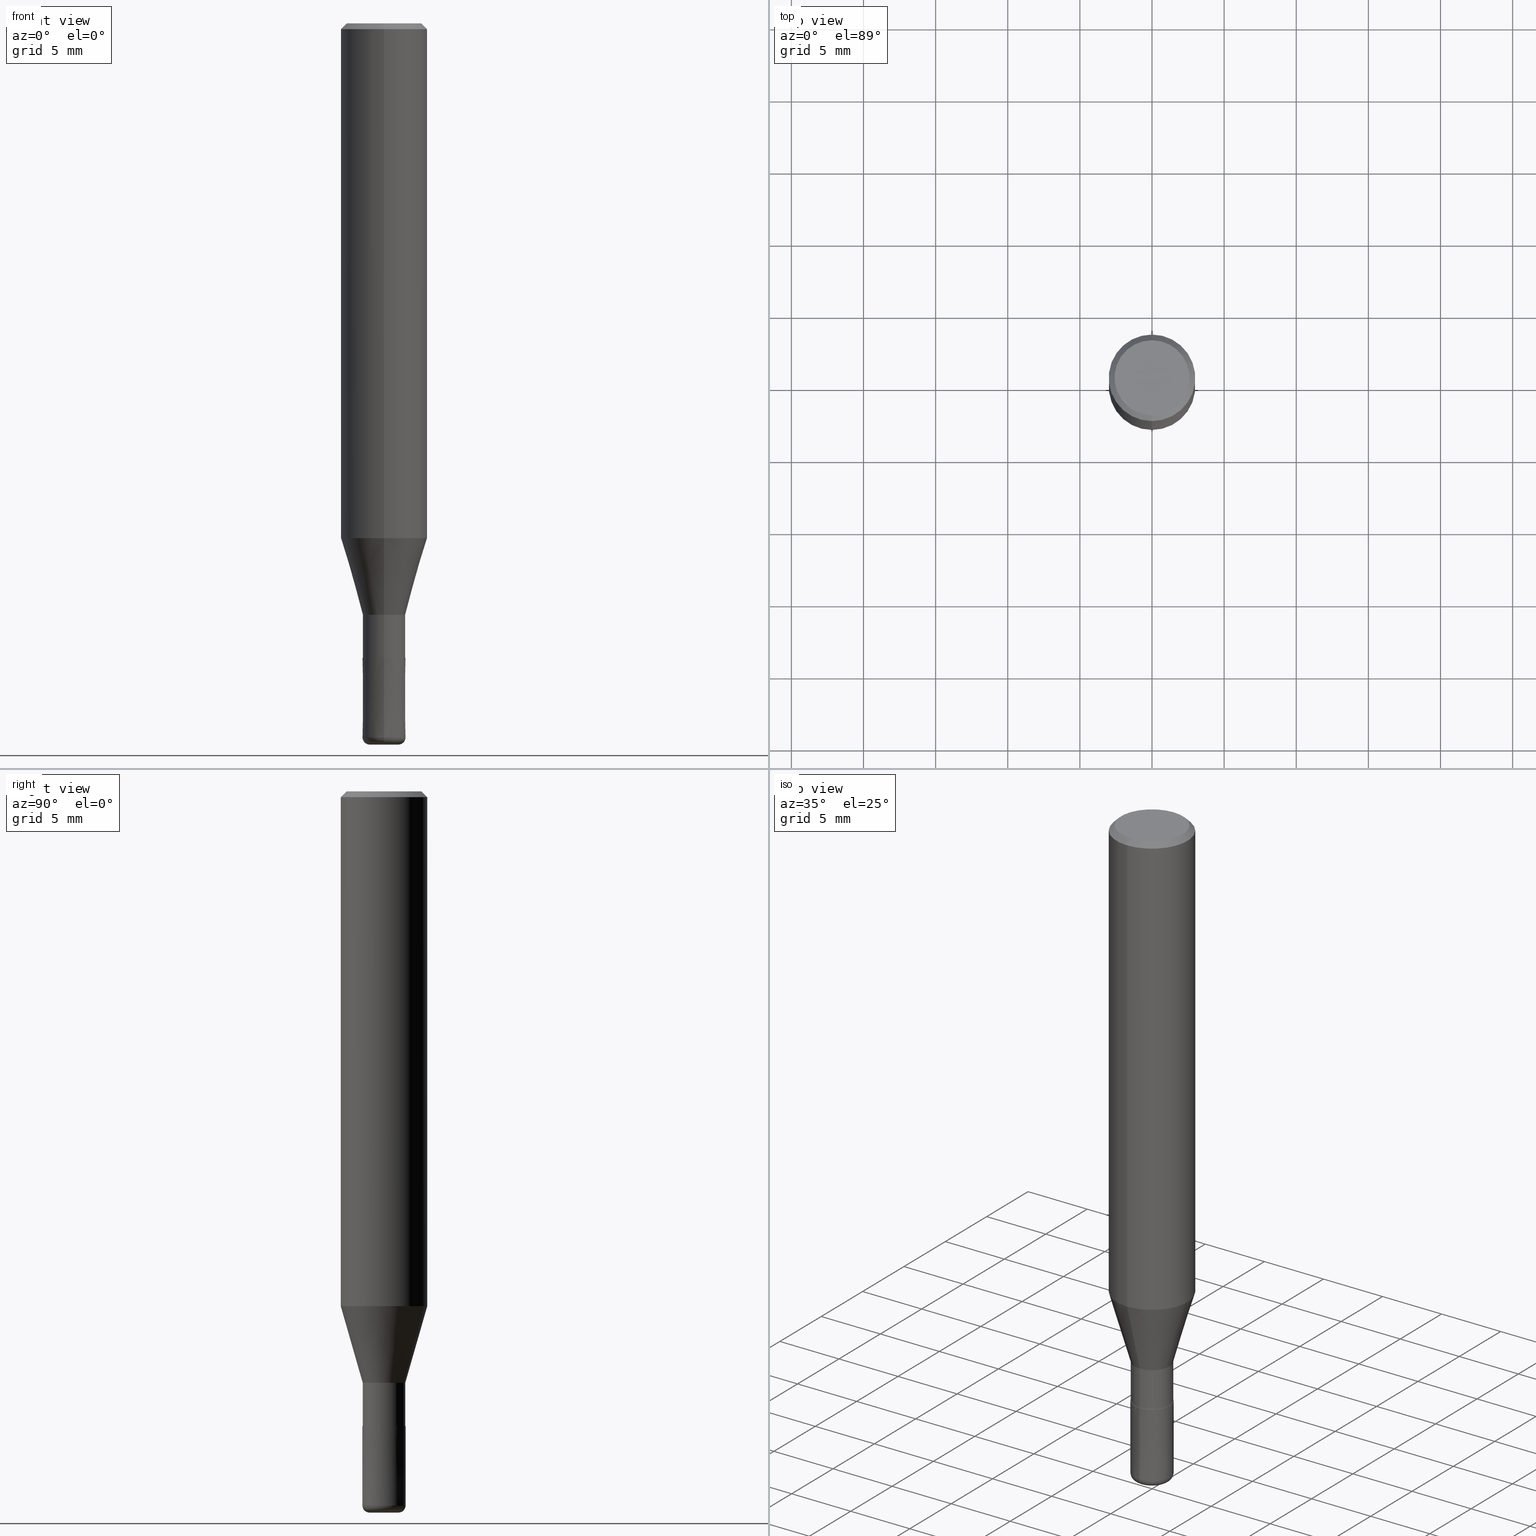
[diagram: canonical four-view strip — front | top / right | iso, engineering-drawing reading convention]
A machine part, canonical four-view strip (front | top / right | iso — engineering-drawing reading convention). The complete STEP part file that produces these views, byte-faithful:
ISO-10303-21;
HEADER;
FILE_DESCRIPTION(('no description'),'unknown implementation level');
FILE_NAME('CXLRS5030-05-09-Huellk.stp','  ',('CIMSOURCE GmbH'),('CADClick - KiM GmbH - www.kimweb.de'),'unknown preprocess','ACIS','unknown authorization');
FILE_SCHEMA(('automotive_design'));
ENDSEC;
DATA;
#1=MECHANICAL_DESIGN_GEOMETRIC_PRESENTATION_REPRESENTATION(' ',(#14,#15,#16,#17,#18,#19,#20,#21,#22,#23,#24,#25,#26,#27,#28,#29,#30,#31,#32,#33,#34,#35,#36,#37,#38,#39,#40,#41,#42,#43,#44,#45,#46,#47,#48,#49,#50,#51,#52,#53,#54,#55,#56,#57,#58,#59,#60,#61,#62,#63,#64,#65,#66,#67,#68,#69,#70,#71,#72,#73,#74,#75,#76,#77,#78,#79,#80,#81,#82,#83,#84,#85,#86,#87,#88,#89,#90,#91,#92,#93,#94,#95,#96,#97,#98,#99,#100,#101,#102,#103,#104,#105),#10);
#2=PRODUCT_DEFINITION_CONTEXT('',#106,'design');
#3=APPLICATION_PROTOCOL_DEFINITION('INTERNATIONAL STANDARD','automotive_design',1994,#106);
#4=PRODUCT_CATEGORY_RELATIONSHIP('NONE','NONE',#107,#108);
#5=SHAPE_DEFINITION_REPRESENTATION(#109,#110);
#6=PRODUCT_DEFINITION_CONTEXT('',#111,'design');
#7=APPLICATION_PROTOCOL_DEFINITION('INTERNATIONAL STANDARD','automotive_design',1994,#111);
#8=PRODUCT_CATEGORY_RELATIONSHIP('NONE','NONE',#112,#113);
#9=SHAPE_DEFINITION_REPRESENTATION(#114,#115);
#10= (GEOMETRIC_REPRESENTATION_CONTEXT(3)GLOBAL_UNCERTAINTY_ASSIGNED_CONTEXT((#118))GLOBAL_UNIT_ASSIGNED_CONTEXT((#120,#121,#122))REPRESENTATION_CONTEXT('NONE','WORKSPACE'));
#14=STYLED_ITEM('',(#124),#125);
#15=STYLED_ITEM('',(#126),#127);
#16=STYLED_ITEM('',(#128),#129);
#17=STYLED_ITEM('',(#130),#131);
#18=STYLED_ITEM('',(#132),#133);
#19=STYLED_ITEM('',(#134),#135);
#20=STYLED_ITEM('',(#136),#137);
#21=STYLED_ITEM('',(#138),#139);
#22=STYLED_ITEM('',(#140),#141);
#23=STYLED_ITEM('',(#142),#143);
#24=STYLED_ITEM('',(#144),#145);
#25=STYLED_ITEM('',(#146),#147);
#26=STYLED_ITEM('',(#148),#149);
#27=STYLED_ITEM('',(#150),#151);
#28=STYLED_ITEM('',(#152),#153);
#29=STYLED_ITEM('',(#154),#155);
#30=STYLED_ITEM('',(#156),#157);
#31=STYLED_ITEM('',(#158),#159);
#32=STYLED_ITEM('',(#160),#161);
#33=STYLED_ITEM('',(#162),#163);
#34=STYLED_ITEM('',(#164),#165);
#35=STYLED_ITEM('',(#166),#167);
#36=STYLED_ITEM('',(#168),#169);
#37=STYLED_ITEM('',(#170),#171);
#38=STYLED_ITEM('',(#172),#173);
#39=STYLED_ITEM('',(#174),#175);
#40=STYLED_ITEM('',(#176),#177);
#41=STYLED_ITEM('',(#178),#179);
#42=STYLED_ITEM('',(#180),#181);
#43=STYLED_ITEM('',(#182),#183);
#44=STYLED_ITEM('',(#184),#185);
#45=STYLED_ITEM('',(#186),#187);
#46=STYLED_ITEM('',(#188),#189);
#47=STYLED_ITEM('',(#190),#191);
#48=STYLED_ITEM('',(#192),#193);
#49=STYLED_ITEM('',(#194),#195);
#50=STYLED_ITEM('',(#196),#197);
#51=STYLED_ITEM('',(#198),#199);
#52=STYLED_ITEM('',(#200),#201);
#53=STYLED_ITEM('',(#202),#203);
#54=STYLED_ITEM('',(#204),#205);
#55=STYLED_ITEM('',(#206),#207);
#56=STYLED_ITEM('',(#208),#209);
#57=STYLED_ITEM('',(#210),#211);
#58=STYLED_ITEM('',(#212),#213);
#59=STYLED_ITEM('',(#214),#215);
#60=STYLED_ITEM('',(#216),#217);
#61=STYLED_ITEM('',(#218),#219);
#62=STYLED_ITEM('',(#220),#221);
#63=STYLED_ITEM('',(#222),#223);
#64=STYLED_ITEM('',(#224),#225);
#65=STYLED_ITEM('',(#226),#227);
#66=STYLED_ITEM('',(#228),#229);
#67=STYLED_ITEM('',(#230),#231);
#68=STYLED_ITEM('',(#232),#233);
#69=STYLED_ITEM('',(#234),#235);
#70=STYLED_ITEM('',(#236),#237);
#71=STYLED_ITEM('',(#238),#239);
#72=STYLED_ITEM('',(#240),#241);
#73=STYLED_ITEM('',(#242),#243);
#74=STYLED_ITEM('',(#244),#245);
#75=STYLED_ITEM('',(#246),#247);
#76=STYLED_ITEM('',(#248),#249);
#77=STYLED_ITEM('',(#250),#251);
#78=STYLED_ITEM('',(#252),#253);
#79=STYLED_ITEM('',(#254),#255);
#80=STYLED_ITEM('',(#256),#257);
#81=STYLED_ITEM('',(#258),#259);
#82=STYLED_ITEM('',(#260),#261);
#83=STYLED_ITEM('',(#262),#263);
#84=STYLED_ITEM('',(#264),#265);
#85=STYLED_ITEM('',(#266),#267);
#86=STYLED_ITEM('',(#268),#269);
#87=STYLED_ITEM('',(#270),#271);
#88=STYLED_ITEM('',(#272),#273);
#89=STYLED_ITEM('',(#274),#275);
#90=STYLED_ITEM('',(#276),#277);
#91=STYLED_ITEM('',(#278),#279);
#92=STYLED_ITEM('',(#280),#281);
#93=STYLED_ITEM('',(#282),#283);
#94=STYLED_ITEM('',(#284),#285);
#95=STYLED_ITEM('',(#286),#287);
#96=STYLED_ITEM('',(#288),#289);
#97=STYLED_ITEM('',(#290),#291);
#98=STYLED_ITEM('',(#292),#293);
#99=STYLED_ITEM('',(#294),#295);
#100=STYLED_ITEM('',(#296),#297);
#101=STYLED_ITEM('',(#298),#299);
#102=STYLED_ITEM('',(#300),#301);
#103=STYLED_ITEM('',(#302),#303);
#104=STYLED_ITEM('',(#304),#305);
#105=STYLED_ITEM('',(#306),#307);
#106=APPLICATION_CONTEXT(' ');
#107=PRODUCT_CATEGORY('part','NONE');
#108=PRODUCT_RELATED_PRODUCT_CATEGORY('detail',' ',(#308));
#109=PRODUCT_DEFINITION_SHAPE('NONE','NONE',#309);
#110=ADVANCED_BREP_SHAPE_REPRESENTATION('1',(#297,#310),#10);
#111=APPLICATION_CONTEXT(' ');
#112=PRODUCT_CATEGORY('part','NONE');
#113=PRODUCT_RELATED_PRODUCT_CATEGORY('detail',' ',(#311));
#114=PRODUCT_DEFINITION_SHAPE('NONE','NONE',#312);
#115=ADVANCED_BREP_SHAPE_REPRESENTATION('2',(#141,#313),#10);
#118=UNCERTAINTY_MEASURE_WITH_UNIT(LENGTH_MEASURE(1.0E-006),#120,'','');
#120= (CONVERSION_BASED_UNIT('MILLIMETRE',#316)LENGTH_UNIT()NAMED_UNIT(#319));
#121= (NAMED_UNIT(#321)PLANE_ANGLE_UNIT()SI_UNIT($,.RADIAN.));
#122= (NAMED_UNIT(#321)SOLID_ANGLE_UNIT()SI_UNIT($,.STERADIAN.));
#124=PRESENTATION_STYLE_ASSIGNMENT((#327));
#125=ADVANCED_FACE('',(#328),#329,.T.);
#126=PRESENTATION_STYLE_ASSIGNMENT((#330));
#127=EDGE_CURVE('',#169,#225,#331,.T.);
#128=PRESENTATION_STYLE_ASSIGNMENT((#332));
#129=VERTEX_POINT('',#333);
#130=PRESENTATION_STYLE_ASSIGNMENT((#334));
#131=VERTEX_POINT('',#335);
#132=PRESENTATION_STYLE_ASSIGNMENT((#336));
#133=EDGE_CURVE('',#215,#161,#337,.T.);
#134=PRESENTATION_STYLE_ASSIGNMENT((#338));
#135=EDGE_CURVE('',#137,#263,#339,.T.);
#136=PRESENTATION_STYLE_ASSIGNMENT((#340));
#137=VERTEX_POINT('',#341);
#138=PRESENTATION_STYLE_ASSIGNMENT((#342));
#139=EDGE_CURVE('',#151,#195,#343,.T.);
#140=PRESENTATION_STYLE_ASSIGNMENT((#344));
#141=MANIFOLD_SOLID_BREP('2',#345);
#142=PRESENTATION_STYLE_ASSIGNMENT((#346));
#143=ADVANCED_FACE('',(#347),#348,.T.);
#144=PRESENTATION_STYLE_ASSIGNMENT((#349));
#145=VERTEX_POINT('',#350);
#146=PRESENTATION_STYLE_ASSIGNMENT((#351));
#147=ADVANCED_FACE('',(#352),#353,.F.);
#148=PRESENTATION_STYLE_ASSIGNMENT((#354));
#149=EDGE_CURVE('',#203,#129,#355,.T.);
#150=PRESENTATION_STYLE_ASSIGNMENT((#356));
#151=VERTEX_POINT('',#357);
#152=PRESENTATION_STYLE_ASSIGNMENT((#358));
#153=EDGE_CURVE('',#263,#255,#359,.T.);
#154=PRESENTATION_STYLE_ASSIGNMENT((#360));
#155=ADVANCED_FACE('',(#361),#362,.F.);
#156=PRESENTATION_STYLE_ASSIGNMENT((#363));
#157=EDGE_CURVE('',#211,#279,#364,.T.);
#158=PRESENTATION_STYLE_ASSIGNMENT((#365));
#159=EDGE_CURVE('',#223,#251,#366,.T.);
#160=PRESENTATION_STYLE_ASSIGNMENT((#367));
#161=VERTEX_POINT('',#368);
#162=PRESENTATION_STYLE_ASSIGNMENT((#369));
#163=EDGE_CURVE('',#145,#227,#370,.T.);
#164=PRESENTATION_STYLE_ASSIGNMENT((#371));
#165=EDGE_CURVE('',#223,#303,#372,.T.);
#166=PRESENTATION_STYLE_ASSIGNMENT((#373));
#167=ADVANCED_FACE('',(#374),#375,.T.);
#168=PRESENTATION_STYLE_ASSIGNMENT((#376));
#169=VERTEX_POINT('',#377);
#170=PRESENTATION_STYLE_ASSIGNMENT((#378));
#171=ADVANCED_FACE('',(#379),#380,.T.);
#172=PRESENTATION_STYLE_ASSIGNMENT((#381));
#173=EDGE_CURVE('',#203,#275,#382,.T.);
#174=PRESENTATION_STYLE_ASSIGNMENT((#383));
#175=VERTEX_POINT('',#384);
#176=PRESENTATION_STYLE_ASSIGNMENT((#385));
#177=EDGE_CURVE('',#275,#203,#386,.T.);
#178=PRESENTATION_STYLE_ASSIGNMENT((#387));
#179=EDGE_CURVE('',#287,#225,#388,.T.);
#180=PRESENTATION_STYLE_ASSIGNMENT((#389));
#181=EDGE_CURVE('',#195,#263,#390,.T.);
#182=PRESENTATION_STYLE_ASSIGNMENT((#391));
#183=ADVANCED_FACE('',(#392),#393,.T.);
#184=PRESENTATION_STYLE_ASSIGNMENT((#394));
#185=EDGE_CURVE('',#175,#279,#395,.T.);
#186=PRESENTATION_STYLE_ASSIGNMENT((#396));
#187=VERTEX_POINT('',#397);
#188=PRESENTATION_STYLE_ASSIGNMENT((#398));
#189=ADVANCED_FACE('',(#399),#400,.T.);
#190=PRESENTATION_STYLE_ASSIGNMENT((#401));
#191=EDGE_CURVE('',#131,#175,#402,.T.);
#192=PRESENTATION_STYLE_ASSIGNMENT((#403));
#193=EDGE_CURVE('',#221,#251,#404,.T.);
#194=PRESENTATION_STYLE_ASSIGNMENT((#405));
#195=VERTEX_POINT('',#406);
#196=PRESENTATION_STYLE_ASSIGNMENT((#407));
#197=EDGE_CURVE('',#145,#203,#408,.T.);
#198=PRESENTATION_STYLE_ASSIGNMENT((#409));
#199=EDGE_CURVE('',#175,#215,#410,.T.);
#200=PRESENTATION_STYLE_ASSIGNMENT((#411));
#201=EDGE_CURVE('',#131,#161,#412,.T.);
#202=PRESENTATION_STYLE_ASSIGNMENT((#413));
#203=VERTEX_POINT('',#414);
#204=PRESENTATION_STYLE_ASSIGNMENT((#415));
#205=EDGE_CURVE('',#279,#211,#416,.T.);
#206=PRESENTATION_STYLE_ASSIGNMENT((#417));
#207=EDGE_CURVE('',#187,#129,#418,.T.);
#208=PRESENTATION_STYLE_ASSIGNMENT((#419));
#209=EDGE_CURVE('',#215,#175,#420,.T.);
#210=PRESENTATION_STYLE_ASSIGNMENT((#421));
#211=VERTEX_POINT('',#422);
#212=PRESENTATION_STYLE_ASSIGNMENT((#423));
#213=ADVANCED_FACE('',(#424),#425,.T.);
#214=PRESENTATION_STYLE_ASSIGNMENT((#426));
#215=VERTEX_POINT('',#427);
#216=PRESENTATION_STYLE_ASSIGNMENT((#428));
#217=EDGE_CURVE('',#161,#131,#429,.T.);
#218=PRESENTATION_STYLE_ASSIGNMENT((#430));
#219=ADVANCED_FACE('',(#431),#432,.T.);
#220=PRESENTATION_STYLE_ASSIGNMENT((#433));
#221=VERTEX_POINT('',#434);
#222=PRESENTATION_STYLE_ASSIGNMENT((#435));
#223=VERTEX_POINT('',#436);
#224=PRESENTATION_STYLE_ASSIGNMENT((#437));
#225=VERTEX_POINT('',#438);
#226=PRESENTATION_STYLE_ASSIGNMENT((#439));
#227=VERTEX_POINT('',#440);
#228=PRESENTATION_STYLE_ASSIGNMENT((#441));
#229=EDGE_CURVE('',#275,#227,#442,.T.);
#230=PRESENTATION_STYLE_ASSIGNMENT((#443));
#231=ADVANCED_FACE('',(#444,#445),#446,.T.);
#232=PRESENTATION_STYLE_ASSIGNMENT((#447));
#233=EDGE_CURVE('',#285,#137,#448,.T.);
#234=PRESENTATION_STYLE_ASSIGNMENT((#449));
#235=EDGE_CURVE('',#227,#145,#450,.T.);
#236=PRESENTATION_STYLE_ASSIGNMENT((#451));
#237=EDGE_CURVE('',#137,#285,#452,.T.);
#238=PRESENTATION_STYLE_ASSIGNMENT((#453));
#239=EDGE_CURVE('',#225,#287,#454,.T.);
#240=PRESENTATION_STYLE_ASSIGNMENT((#455));
#241=ADVANCED_FACE('',(#456),#457,.T.);
#242=PRESENTATION_STYLE_ASSIGNMENT((#458));
#243=EDGE_CURVE('',#255,#151,#459,.T.);
#244=PRESENTATION_STYLE_ASSIGNMENT((#460));
#245=ADVANCED_FACE('',(#461),#462,.T.);
#246=PRESENTATION_STYLE_ASSIGNMENT((#463));
#247=EDGE_CURVE('',#187,#275,#464,.T.);
#248=PRESENTATION_STYLE_ASSIGNMENT((#465));
#249=EDGE_CURVE('',#265,#169,#466,.T.);
#250=PRESENTATION_STYLE_ASSIGNMENT((#467));
#251=VERTEX_POINT('',#468);
#252=PRESENTATION_STYLE_ASSIGNMENT((#469));
#253=EDGE_CURVE('',#251,#221,#470,.T.);
#254=PRESENTATION_STYLE_ASSIGNMENT((#471));
#255=VERTEX_POINT('',#472);
#256=PRESENTATION_STYLE_ASSIGNMENT((#473));
#257=ADVANCED_FACE('',(#474,#475),#476,.T.);
#258=PRESENTATION_STYLE_ASSIGNMENT((#477));
#259=EDGE_CURVE('',#211,#215,#478,.T.);
#260=PRESENTATION_STYLE_ASSIGNMENT((#479));
#261=EDGE_CURVE('',#195,#151,#480,.T.);
#262=PRESENTATION_STYLE_ASSIGNMENT((#481));
#263=VERTEX_POINT('',#482);
#264=PRESENTATION_STYLE_ASSIGNMENT((#483));
#265=VERTEX_POINT('',#484);
#266=PRESENTATION_STYLE_ASSIGNMENT((#485));
#267=ADVANCED_FACE('',(#486,#487),#488,.T.);
#268=PRESENTATION_STYLE_ASSIGNMENT((#489));
#269=EDGE_CURVE('',#129,#187,#490,.T.);
#270=PRESENTATION_STYLE_ASSIGNMENT((#491));
#271=ADVANCED_FACE('',(#492,#493),#494,.T.);
#272=PRESENTATION_STYLE_ASSIGNMENT((#495));
#273=ADVANCED_FACE('',(#496),#497,.T.);
#274=PRESENTATION_STYLE_ASSIGNMENT((#498));
#275=VERTEX_POINT('',#499);
#276=PRESENTATION_STYLE_ASSIGNMENT((#500));
#277=EDGE_CURVE('',#287,#265,#501,.T.);
#278=PRESENTATION_STYLE_ASSIGNMENT((#502));
#279=VERTEX_POINT('',#503);
#280=PRESENTATION_STYLE_ASSIGNMENT((#504));
#281=ADVANCED_FACE('',(#505),#506,.T.);
#282=PRESENTATION_STYLE_ASSIGNMENT((#507));
#283=ADVANCED_FACE('',(#508),#509,.T.);
#284=PRESENTATION_STYLE_ASSIGNMENT((#510));
#285=VERTEX_POINT('',#511);
#286=PRESENTATION_STYLE_ASSIGNMENT((#512));
#287=VERTEX_POINT('',#513);
#288=PRESENTATION_STYLE_ASSIGNMENT((#514));
#289=EDGE_CURVE('',#255,#285,#515,.T.);
#290=PRESENTATION_STYLE_ASSIGNMENT((#516));
#291=EDGE_CURVE('',#255,#263,#517,.T.);
#292=PRESENTATION_STYLE_ASSIGNMENT((#518));
#293=ADVANCED_FACE('',(#519),#520,.T.);
#294=PRESENTATION_STYLE_ASSIGNMENT((#521));
#295=EDGE_CURVE('',#169,#265,#522,.T.);
#296=PRESENTATION_STYLE_ASSIGNMENT((#523));
#297=MANIFOLD_SOLID_BREP('1',#524);
#298=PRESENTATION_STYLE_ASSIGNMENT((#525));
#299=ADVANCED_FACE('',(#526),#527,.T.);
#300=PRESENTATION_STYLE_ASSIGNMENT((#528));
#301=ADVANCED_FACE('',(#529),#530,.T.);
#302=PRESENTATION_STYLE_ASSIGNMENT((#531));
#303=VERTEX_POINT('',#532);
#304=PRESENTATION_STYLE_ASSIGNMENT((#533));
#305=EDGE_CURVE('',#221,#303,#534,.T.);
#306=PRESENTATION_STYLE_ASSIGNMENT((#535));
#307=EDGE_CURVE('',#303,#223,#536,.T.);
#308=PRODUCT('1','1','PART-1-DESC',(#537));
#309=PRODUCT_DEFINITION('NONE','NONE',#538,#2);
#310=AXIS2_PLACEMENT_3D('',#539,#540,#541);
#311=PRODUCT('2','2','PART-2-DESC',(#542));
#312=PRODUCT_DEFINITION('NONE','NONE',#543,#6);
#313=AXIS2_PLACEMENT_3D('',#544,#545,#546);
#316=LENGTH_MEASURE_WITH_UNIT(LENGTH_MEASURE(1.0),#547);
#319=DIMENSIONAL_EXPONENTS(1.0,0.0,0.0,0.0,0.0,0.0,0.0);
#321=DIMENSIONAL_EXPONENTS(0.0,0.0,0.0,0.0,0.0,0.0,0.0);
#327=SURFACE_STYLE_USAGE(.BOTH.,#548);
#328=FACE_OUTER_BOUND('',#549,.T.);
#329=CYLINDRICAL_SURFACE('',#550,3.0);
#330=CURVE_STYLE('',#551,POSITIVE_LENGTH_MEASURE(1.0E-006),#552);
#331=LINE('',#553,#554);
#332=POINT_STYLE(' ',#555,POSITIVE_LENGTH_MEASURE(1.0E-006),#556);
#333=CARTESIAN_POINT('',(3.67375783114944E-016,-2.99995,-35.682));
#334=POINT_STYLE(' ',#557,POSITIVE_LENGTH_MEASURE(1.0E-006),#558);
#335=CARTESIAN_POINT('',(0.0,2.6,0.0));
#336=CURVE_STYLE('',#559,POSITIVE_LENGTH_MEASURE(1.0E-006),#560);
#337=LINE('',#561,#562);
#338=CURVE_STYLE('',#563,POSITIVE_LENGTH_MEASURE(1.0E-006),#564);
#339=CIRCLE('',#565,0.500000000000001);
#340=POINT_STYLE(' ',#566,POSITIVE_LENGTH_MEASURE(1.0E-006),#567);
#341=CARTESIAN_POINT('',(0.0,1.0,-50.0));
#342=CURVE_STYLE('',#568,POSITIVE_LENGTH_MEASURE(1.0E-006),#569);
#343=CIRCLE('',#570,1.4999);
#344=SURFACE_STYLE_USAGE(.BOTH.,#571);
#345=CLOSED_SHELL('',(#147,#219,#283,#271,#245,#301,#257,#155));
#346=SURFACE_STYLE_USAGE(.BOTH.,#572);
#347=FACE_OUTER_BOUND('',#573,.T.);
#348=PLANE('',#574);
#349=POINT_STYLE(' ',#575,POSITIVE_LENGTH_MEASURE(1.0E-006),#576);
#350=CARTESIAN_POINT('',(1.80623314157032E-016,-1.47495,-44.0));
#351=SURFACE_STYLE_USAGE(.BOTH.,#577);
#352=FACE_OUTER_BOUND('',#578,.T.);
#353=CYLINDRICAL_SURFACE('',#579,0.675);
#354=CURVE_STYLE('',#580,POSITIVE_LENGTH_MEASURE(1.0E-006),#581);
#355=LINE('',#582,#583);
#356=POINT_STYLE(' ',#584,POSITIVE_LENGTH_MEASURE(1.0E-006),#585);
#357=CARTESIAN_POINT('',(1.83678707009818E-016,-1.4999,-44.0));
#358=CURVE_STYLE('',#586,POSITIVE_LENGTH_MEASURE(1.0E-006),#587);
#359=CIRCLE('',#588,1.5);
#360=SURFACE_STYLE_USAGE(.BOTH.,#589);
#361=FACE_OUTER_BOUND('',#590,.T.);
#362=CYLINDRICAL_SURFACE('',#591,0.675);
#363=CURVE_STYLE('',#592,POSITIVE_LENGTH_MEASURE(1.0E-006),#593);
#364=CIRCLE('',#594,3.0);
#365=CURVE_STYLE('',#595,POSITIVE_LENGTH_MEASURE(1.0E-006),#596);
#366=LINE('',#597,#598);
#367=POINT_STYLE(' ',#599,POSITIVE_LENGTH_MEASURE(1.0E-006),#600);
#368=CARTESIAN_POINT('',(3.18397651993818E-016,-2.6,0.0));
#369=CURVE_STYLE('',#601,POSITIVE_LENGTH_MEASURE(1.0E-006),#602);
#370=CIRCLE('',#603,1.47495);
#371=CURVE_STYLE('',#604,POSITIVE_LENGTH_MEASURE(1.0E-006),#605);
#372=CIRCLE('',#606,0.675);
#373=SURFACE_STYLE_USAGE(.BOTH.,#607);
#374=FACE_OUTER_BOUND('',#608,.T.);
#375=CYLINDRICAL_SURFACE('',#609,0.675);
#376=POINT_STYLE(' ',#610,POSITIVE_LENGTH_MEASURE(1.0E-006),#611);
#377=CARTESIAN_POINT('',(0.0,0.675,-44.0));
#378=SURFACE_STYLE_USAGE(.BOTH.,#612);
#379=FACE_OUTER_BOUND('',#613,.T.);
#380=CYLINDRICAL_SURFACE('',#614,0.675);
#381=CURVE_STYLE('',#615,POSITIVE_LENGTH_MEASURE(1.0E-006),#616);
#382=CIRCLE('',#617,1.47495);
#383=POINT_STYLE(' ',#618,POSITIVE_LENGTH_MEASURE(1.0E-006),#619);
#384=CARTESIAN_POINT('',(0.0,3.0,-0.399999999999999));
#385=CURVE_STYLE('',#620,POSITIVE_LENGTH_MEASURE(1.0E-006),#621);
#386=CIRCLE('',#622,1.47495);
#387=CURVE_STYLE('',#623,POSITIVE_LENGTH_MEASURE(1.0E-006),#624);
#388=CIRCLE('',#625,0.675);
#389=CURVE_STYLE('',#626,POSITIVE_LENGTH_MEASURE(1.0E-006),#627);
#390=LINE('',#628,#629);
#391=SURFACE_STYLE_USAGE(.BOTH.,#630);
#392=FACE_OUTER_BOUND('',#631,.T.);
#393=CYLINDRICAL_SURFACE('',#632,1.47495);
#394=CURVE_STYLE('',#633,POSITIVE_LENGTH_MEASURE(1.0E-006),#634);
#395=LINE('',#635,#636);
#396=POINT_STYLE(' ',#637,POSITIVE_LENGTH_MEASURE(1.0E-006),#638);
#397=CARTESIAN_POINT('',(0.0,2.99995,-35.682));
#398=SURFACE_STYLE_USAGE(.BOTH.,#639);
#399=FACE_OUTER_BOUND('',#640,.T.);
#400=CONICAL_SURFACE('',#641,2.8,0.78539816339745);
#401=CURVE_STYLE('',#642,POSITIVE_LENGTH_MEASURE(1.0E-006),#643);
#402=LINE('',#644,#645);
#403=CURVE_STYLE('',#646,POSITIVE_LENGTH_MEASURE(1.0E-006),#647);
#404=CIRCLE('',#648,0.675);
#405=POINT_STYLE(' ',#649,POSITIVE_LENGTH_MEASURE(1.0E-006),#650);
#406=CARTESIAN_POINT('',(0.0,1.4999,-44.0));
#407=CURVE_STYLE('',#651,POSITIVE_LENGTH_MEASURE(1.0E-006),#652);
#408=LINE('',#653,#654);
#409=CURVE_STYLE('',#655,POSITIVE_LENGTH_MEASURE(1.0E-006),#656);
#410=CIRCLE('',#657,3.0);
#411=CURVE_STYLE('',#658,POSITIVE_LENGTH_MEASURE(1.0E-006),#659);
#412=CIRCLE('',#660,2.6);
#413=POINT_STYLE(' ',#661,POSITIVE_LENGTH_MEASURE(1.0E-006),#662);
#414=CARTESIAN_POINT('',(1.80623314157032E-016,-1.47495,-41.0));
#415=CURVE_STYLE('',#663,POSITIVE_LENGTH_MEASURE(1.0E-006),#664);
#416=CIRCLE('',#665,3.0);
#417=CURVE_STYLE('',#666,POSITIVE_LENGTH_MEASURE(1.0E-006),#667);
#418=CIRCLE('',#668,2.99995);
#419=CURVE_STYLE('',#669,POSITIVE_LENGTH_MEASURE(1.0E-006),#670);
#420=CIRCLE('',#671,3.0);
#421=POINT_STYLE(' ',#672,POSITIVE_LENGTH_MEASURE(1.0E-006),#673);
#422=CARTESIAN_POINT('',(3.67381906146713E-016,-3.0,-35.682));
#423=SURFACE_STYLE_USAGE(.BOTH.,#674);
#424=FACE_OUTER_BOUND('',#675,.T.);
#425=CONICAL_SURFACE('',#676,2.23745,0.279267977304115);
#426=POINT_STYLE(' ',#677,POSITIVE_LENGTH_MEASURE(1.0E-006),#678);
#427=CARTESIAN_POINT('',(3.67381906146713E-016,-3.0,-0.399999999999999));
#428=CURVE_STYLE('',#679,POSITIVE_LENGTH_MEASURE(1.0E-006),#680);
#429=CIRCLE('',#681,2.6);
#430=SURFACE_STYLE_USAGE(.BOTH.,#682);
#431=FACE_OUTER_BOUND('',#683,.T.);
#432=TOROIDAL_SURFACE('',#684,0.999999999999999,0.500000000000001);
#433=POINT_STYLE(' ',#685,POSITIVE_LENGTH_MEASURE(1.0E-006),#686);
#434=CARTESIAN_POINT('',(0.0,0.675,-44.0));
#435=POINT_STYLE(' ',#687,POSITIVE_LENGTH_MEASURE(1.0E-006),#688);
#436=CARTESIAN_POINT('',(8.26609288830105E-017,-0.675,-50.0));
#437=POINT_STYLE(' ',#689,POSITIVE_LENGTH_MEASURE(1.0E-006),#690);
#438=CARTESIAN_POINT('',(0.0,0.675,-49.9));
#439=POINT_STYLE(' ',#691,POSITIVE_LENGTH_MEASURE(1.0E-006),#692);
#440=CARTESIAN_POINT('',(0.0,1.47495,-44.0));
#441=CURVE_STYLE('',#693,POSITIVE_LENGTH_MEASURE(1.0E-006),#694);
#442=LINE('',#695,#696);
#443=SURFACE_STYLE_USAGE(.BOTH.,#697);
#444=FACE_BOUND('',#698,.T.);
#445=FACE_OUTER_BOUND('',#699,.T.);
#446=PLANE('',#700);
#447=CURVE_STYLE('',#701,POSITIVE_LENGTH_MEASURE(1.0E-006),#702);
#448=CIRCLE('',#703,1.0);
#449=CURVE_STYLE('',#704,POSITIVE_LENGTH_MEASURE(1.0E-006),#705);
#450=CIRCLE('',#706,1.47495);
#451=CURVE_STYLE('',#707,POSITIVE_LENGTH_MEASURE(1.0E-006),#708);
#452=CIRCLE('',#709,1.0);
#453=CURVE_STYLE('',#710,POSITIVE_LENGTH_MEASURE(1.0E-006),#711);
#454=CIRCLE('',#712,0.675);
#455=SURFACE_STYLE_USAGE(.BOTH.,#713);
#456=FACE_OUTER_BOUND('',#714,.T.);
#457=CYLINDRICAL_SURFACE('',#715,1.47495);
#458=CURVE_STYLE('',#716,POSITIVE_LENGTH_MEASURE(1.0E-006),#717);
#459=LINE('',#718,#719);
#460=SURFACE_STYLE_USAGE(.BOTH.,#720);
#461=FACE_OUTER_BOUND('',#721,.T.);
#462=CONICAL_SURFACE('',#722,1.49995,1.81818181798127E-005);
#463=CURVE_STYLE('',#723,POSITIVE_LENGTH_MEASURE(1.0E-006),#724);
#464=LINE('',#725,#726);
#465=CURVE_STYLE('',#727,POSITIVE_LENGTH_MEASURE(1.0E-006),#728);
#466=CIRCLE('',#729,0.675);
#467=POINT_STYLE(' ',#730,POSITIVE_LENGTH_MEASURE(1.0E-006),#731);
#468=CARTESIAN_POINT('',(8.26609288830105E-017,-0.675,-44.0));
#469=CURVE_STYLE('',#732,POSITIVE_LENGTH_MEASURE(1.0E-006),#733);
#470=CIRCLE('',#734,0.675);
#471=POINT_STYLE(' ',#735,POSITIVE_LENGTH_MEASURE(1.0E-006),#736);
#472=CARTESIAN_POINT('',(1.83690953073357E-016,-1.5,-49.5));
#473=SURFACE_STYLE_USAGE(.BOTH.,#737);
#474=FACE_BOUND('',#738,.T.);
#475=FACE_OUTER_BOUND('',#739,.T.);
#476=PLANE('',#740);
#477=CURVE_STYLE('',#741,POSITIVE_LENGTH_MEASURE(1.0E-006),#742);
#478=LINE('',#743,#744);
#479=CURVE_STYLE('',#745,POSITIVE_LENGTH_MEASURE(1.0E-006),#746);
#480=CIRCLE('',#747,1.4999);
#481=POINT_STYLE(' ',#748,POSITIVE_LENGTH_MEASURE(1.0E-006),#749);
#482=CARTESIAN_POINT('',(0.0,1.5,-49.5));
#483=POINT_STYLE(' ',#750,POSITIVE_LENGTH_MEASURE(1.0E-006),#751);
#484=CARTESIAN_POINT('',(8.26609288830105E-017,-0.675,-44.0));
#485=SURFACE_STYLE_USAGE(.BOTH.,#752);
#486=FACE_OUTER_BOUND('',#753,.T.);
#487=FACE_BOUND('',#754,.T.);
#488=PLANE('',#755);
#489=CURVE_STYLE('',#756,POSITIVE_LENGTH_MEASURE(1.0E-006),#757);
#490=CIRCLE('',#758,2.99995);
#491=SURFACE_STYLE_USAGE(.BOTH.,#759);
#492=FACE_OUTER_BOUND('',#760,.T.);
#493=FACE_BOUND('',#761,.T.);
#494=PLANE('',#762);
#495=SURFACE_STYLE_USAGE(.BOTH.,#763);
#496=FACE_OUTER_BOUND('',#764,.T.);
#497=CONICAL_SURFACE('',#765,2.23745,0.279267977304115);
#498=POINT_STYLE(' ',#766,POSITIVE_LENGTH_MEASURE(1.0E-006),#767);
#499=CARTESIAN_POINT('',(0.0,1.47495,-41.0));
#500=CURVE_STYLE('',#768,POSITIVE_LENGTH_MEASURE(1.0E-006),#769);
#501=LINE('',#770,#771);
#502=POINT_STYLE(' ',#772,POSITIVE_LENGTH_MEASURE(1.0E-006),#773);
#503=CARTESIAN_POINT('',(0.0,3.0,-35.682));
#504=SURFACE_STYLE_USAGE(.BOTH.,#774);
#505=FACE_OUTER_BOUND('',#775,.T.);
#506=CONICAL_SURFACE('',#776,2.8,0.78539816339745);
#507=SURFACE_STYLE_USAGE(.BOTH.,#777);
#508=FACE_OUTER_BOUND('',#778,.T.);
#509=CONICAL_SURFACE('',#779,1.49995,1.81818181798127E-005);
#510=POINT_STYLE(' ',#780,POSITIVE_LENGTH_MEASURE(1.0E-006),#781);
#511=CARTESIAN_POINT('',(1.22460635382238E-016,-1.0,-50.0));
#512=POINT_STYLE(' ',#782,POSITIVE_LENGTH_MEASURE(1.0E-006),#783);
#513=CARTESIAN_POINT('',(8.26609288830105E-017,-0.675,-49.9));
#514=CURVE_STYLE('',#784,POSITIVE_LENGTH_MEASURE(1.0E-006),#785);
#515=CIRCLE('',#786,0.500000000000001);
#516=CURVE_STYLE('',#787,POSITIVE_LENGTH_MEASURE(1.0E-006),#788);
#517=CIRCLE('',#789,1.5);
#518=SURFACE_STYLE_USAGE(.BOTH.,#790);
#519=FACE_OUTER_BOUND('',#791,.T.);
#520=PLANE('',#792);
#521=CURVE_STYLE('',#793,POSITIVE_LENGTH_MEASURE(1.0E-006),#794);
#522=CIRCLE('',#795,0.675);
#523=SURFACE_STYLE_USAGE(.BOTH.,#796);
#524=CLOSED_SHELL('',(#171,#241,#213,#125,#281,#267,#143,#189,#299,#273,#183,#231,#167,#293));
#525=SURFACE_STYLE_USAGE(.BOTH.,#797);
#526=FACE_OUTER_BOUND('',#798,.T.);
#527=CYLINDRICAL_SURFACE('',#799,3.0);
#528=SURFACE_STYLE_USAGE(.BOTH.,#800);
#529=FACE_OUTER_BOUND('',#801,.T.);
#530=TOROIDAL_SURFACE('',#802,0.999999999999999,0.500000000000001);
#531=POINT_STYLE(' ',#803,POSITIVE_LENGTH_MEASURE(1.0E-006),#804);
#532=CARTESIAN_POINT('',(0.0,0.675,-50.0));
#533=CURVE_STYLE('',#805,POSITIVE_LENGTH_MEASURE(1.0E-006),#806);
#534=LINE('',#807,#808);
#535=CURVE_STYLE('',#809,POSITIVE_LENGTH_MEASURE(1.0E-006),#810);
#536=CIRCLE('',#811,0.675);
#537=PRODUCT_CONTEXT('',#106,'mechanical');
#538=PRODUCT_DEFINITION_FORMATION_WITH_SPECIFIED_SOURCE(' ','NONE',#308,.NOT_KNOWN.);
#539=CARTESIAN_POINT('',(0.0,0.0,0.0));
#540=DIRECTION('',(0.0,0.0,1.0));
#541=DIRECTION('',(1.0,0.0,0.0));
#542=PRODUCT_CONTEXT('',#111,'mechanical');
#543=PRODUCT_DEFINITION_FORMATION_WITH_SPECIFIED_SOURCE(' ','NONE',#311,.NOT_KNOWN.);
#544=CARTESIAN_POINT('',(0.0,0.0,0.0));
#545=DIRECTION('',(0.0,0.0,1.0));
#546=DIRECTION('',(1.0,0.0,0.0));
#547= (NAMED_UNIT(#319)LENGTH_UNIT()SI_UNIT(.MILLI.,.METRE.));
#548=SURFACE_SIDE_STYLE('',(#813));
#549=EDGE_LOOP('',(#814,#815,#816,#817));
#550=AXIS2_PLACEMENT_3D('',#818,#819,#820);
#551=DRAUGHTING_PRE_DEFINED_CURVE_FONT('continuous');
#552=COLOUR_RGB('',0.498039215803146,0.498039215803146,0.498039215803146);
#553=CARTESIAN_POINT('',(-8.26609288830105E-017,0.675,-46.95));
#554=VECTOR('',#821,1.0);
#555=PRE_DEFINED_MARKER('');
#556=COLOUR_RGB('',0.498039215803146,0.498039215803146,0.498039215803146);
#557=PRE_DEFINED_MARKER('');
#558=COLOUR_RGB('',0.498039215803146,0.498039215803146,0.498039215803146);
#559=DRAUGHTING_PRE_DEFINED_CURVE_FONT('continuous');
#560=COLOUR_RGB('',0.498039215803146,0.498039215803146,0.498039215803146);
#561=CARTESIAN_POINT('',(3.42889779070266E-016,-2.8,-0.200000000000003));
#562=VECTOR('',#822,1.0);
#563=DRAUGHTING_PRE_DEFINED_CURVE_FONT('continuous');
#564=COLOUR_RGB('',0.800000011920929,0.800000011920929,0.800000011920929);
#565=AXIS2_PLACEMENT_3D('',#823,#824,#825);
#566=PRE_DEFINED_MARKER('');
#567=COLOUR_RGB('',0.800000011920929,0.800000011920929,0.800000011920929);
#568=DRAUGHTING_PRE_DEFINED_CURVE_FONT('continuous');
#569=COLOUR_RGB('',0.800000011920929,0.800000011920929,0.800000011920929);
#570=AXIS2_PLACEMENT_3D('',#826,#827,#828);
#571=SURFACE_SIDE_STYLE('',(#829));
#572=SURFACE_SIDE_STYLE('',(#830));
#573=EDGE_LOOP('',(#831,#832));
#574=AXIS2_PLACEMENT_3D('',#833,#834,#835);
#575=PRE_DEFINED_MARKER('');
#576=COLOUR_RGB('',0.498039215803146,0.498039215803146,0.498039215803146);
#577=SURFACE_SIDE_STYLE('',(#836));
#578=EDGE_LOOP('',(#837,#838,#839,#840));
#579=AXIS2_PLACEMENT_3D('',#841,#842,#843);
#580=DRAUGHTING_PRE_DEFINED_CURVE_FONT('continuous');
#581=COLOUR_RGB('',0.498039215803146,0.498039215803146,0.498039215803146);
#582=CARTESIAN_POINT('',(2.73999548635988E-016,-2.23745,-38.341));
#583=VECTOR('',#844,1.0);
#584=PRE_DEFINED_MARKER('');
#585=COLOUR_RGB('',0.800000011920929,0.800000011920929,0.800000011920929);
#586=DRAUGHTING_PRE_DEFINED_CURVE_FONT('continuous');
#587=COLOUR_RGB('',0.800000011920929,0.800000011920929,0.800000011920929);
#588=AXIS2_PLACEMENT_3D('',#845,#846,#847);
#589=SURFACE_SIDE_STYLE('',(#848));
#590=EDGE_LOOP('',(#849,#850,#851,#852));
#591=AXIS2_PLACEMENT_3D('',#853,#854,#855);
#592=DRAUGHTING_PRE_DEFINED_CURVE_FONT('continuous');
#593=COLOUR_RGB('',0.498039215803146,0.498039215803146,0.498039215803146);
#594=AXIS2_PLACEMENT_3D('',#856,#857,#858);
#595=DRAUGHTING_PRE_DEFINED_CURVE_FONT('continuous');
#596=COLOUR_RGB('',0.800000011920929,0.800000011920929,0.800000011920929);
#597=CARTESIAN_POINT('',(8.26609288830105E-017,-0.675,-47.0));
#598=VECTOR('',#859,1.0);
#599=PRE_DEFINED_MARKER('');
#600=COLOUR_RGB('',0.498039215803146,0.498039215803146,0.498039215803146);
#601=DRAUGHTING_PRE_DEFINED_CURVE_FONT('continuous');
#602=COLOUR_RGB('',0.498039215803146,0.498039215803146,0.498039215803146);
#603=AXIS2_PLACEMENT_3D('',#860,#861,#862);
#604=DRAUGHTING_PRE_DEFINED_CURVE_FONT('continuous');
#605=COLOUR_RGB('',0.800000011920929,0.800000011920929,0.800000011920929);
#606=AXIS2_PLACEMENT_3D('',#863,#864,#865);
#607=SURFACE_SIDE_STYLE('',(#866));
#608=EDGE_LOOP('',(#867,#868,#869,#870));
#609=AXIS2_PLACEMENT_3D('',#871,#872,#873);
#610=PRE_DEFINED_MARKER('');
#611=COLOUR_RGB('',0.498039215803146,0.498039215803146,0.498039215803146);
#612=SURFACE_SIDE_STYLE('',(#874));
#613=EDGE_LOOP('',(#875,#876,#877,#878));
#614=AXIS2_PLACEMENT_3D('',#879,#880,#881);
#615=DRAUGHTING_PRE_DEFINED_CURVE_FONT('continuous');
#616=COLOUR_RGB('',0.498039215803146,0.498039215803146,0.498039215803146);
#617=AXIS2_PLACEMENT_3D('',#882,#883,#884);
#618=PRE_DEFINED_MARKER('');
#619=COLOUR_RGB('',0.498039215803146,0.498039215803146,0.498039215803146);
#620=DRAUGHTING_PRE_DEFINED_CURVE_FONT('continuous');
#621=COLOUR_RGB('',0.498039215803146,0.498039215803146,0.498039215803146);
#622=AXIS2_PLACEMENT_3D('',#885,#886,#887);
#623=DRAUGHTING_PRE_DEFINED_CURVE_FONT('continuous');
#624=COLOUR_RGB('',0.498039215803146,0.498039215803146,0.498039215803146);
#625=AXIS2_PLACEMENT_3D('',#888,#889,#890);
#626=DRAUGHTING_PRE_DEFINED_CURVE_FONT('continuous');
#627=COLOUR_RGB('',0.800000011920929,0.800000011920929,0.800000011920929);
#628=CARTESIAN_POINT('',(-1.83684830041587E-016,1.49995,-46.75));
#629=VECTOR('',#891,1.0);
#630=SURFACE_SIDE_STYLE('',(#892));
#631=EDGE_LOOP('',(#893,#894,#895,#896));
#632=AXIS2_PLACEMENT_3D('',#897,#898,#899);
#633=DRAUGHTING_PRE_DEFINED_CURVE_FONT('continuous');
#634=COLOUR_RGB('',0.498039215803146,0.498039215803146,0.498039215803146);
#635=CARTESIAN_POINT('',(-3.67381906146713E-016,3.0,-18.041));
#636=VECTOR('',#900,1.0);
#637=PRE_DEFINED_MARKER('');
#638=COLOUR_RGB('',0.498039215803146,0.498039215803146,0.498039215803146);
#639=SURFACE_SIDE_STYLE('',(#901));
#640=EDGE_LOOP('',(#902,#903,#904,#905));
#641=AXIS2_PLACEMENT_3D('',#906,#907,#908);
#642=DRAUGHTING_PRE_DEFINED_CURVE_FONT('continuous');
#643=COLOUR_RGB('',0.498039215803146,0.498039215803146,0.498039215803146);
#644=CARTESIAN_POINT('',(-3.42889779070266E-016,2.8,-0.200000000000003));
#645=VECTOR('',#909,1.0);
#646=DRAUGHTING_PRE_DEFINED_CURVE_FONT('continuous');
#647=COLOUR_RGB('',0.800000011920929,0.800000011920929,0.800000011920929);
#648=AXIS2_PLACEMENT_3D('',#910,#911,#912);
#649=PRE_DEFINED_MARKER('');
#650=COLOUR_RGB('',0.800000011920929,0.800000011920929,0.800000011920929);
#651=DRAUGHTING_PRE_DEFINED_CURVE_FONT('continuous');
#652=COLOUR_RGB('',0.498039215803146,0.498039215803146,0.498039215803146);
#653=CARTESIAN_POINT('',(1.80623314157032E-016,-1.47495,-42.5));
#654=VECTOR('',#913,1.0);
#655=DRAUGHTING_PRE_DEFINED_CURVE_FONT('continuous');
#656=COLOUR_RGB('',0.498039215803146,0.498039215803146,0.498039215803146);
#657=AXIS2_PLACEMENT_3D('',#914,#915,#916);
#658=DRAUGHTING_PRE_DEFINED_CURVE_FONT('continuous');
#659=COLOUR_RGB('',0.498039215803146,0.498039215803146,0.498039215803146);
#660=AXIS2_PLACEMENT_3D('',#917,#918,#919);
#661=PRE_DEFINED_MARKER('');
#662=COLOUR_RGB('',0.498039215803146,0.498039215803146,0.498039215803146);
#663=DRAUGHTING_PRE_DEFINED_CURVE_FONT('continuous');
#664=COLOUR_RGB('',0.498039215803146,0.498039215803146,0.498039215803146);
#665=AXIS2_PLACEMENT_3D('',#920,#921,#922);
#666=DRAUGHTING_PRE_DEFINED_CURVE_FONT('continuous');
#667=COLOUR_RGB('',0.498039215803146,0.498039215803146,0.498039215803146);
#668=AXIS2_PLACEMENT_3D('',#923,#924,#925);
#669=DRAUGHTING_PRE_DEFINED_CURVE_FONT('continuous');
#670=COLOUR_RGB('',0.498039215803146,0.498039215803146,0.498039215803146);
#671=AXIS2_PLACEMENT_3D('',#926,#927,#928);
#672=PRE_DEFINED_MARKER('');
#673=COLOUR_RGB('',0.498039215803146,0.498039215803146,0.498039215803146);
#674=SURFACE_SIDE_STYLE('',(#929));
#675=EDGE_LOOP('',(#930,#931,#932,#933));
#676=AXIS2_PLACEMENT_3D('',#934,#935,#936);
#677=PRE_DEFINED_MARKER('');
#678=COLOUR_RGB('',0.498039215803146,0.498039215803146,0.498039215803146);
#679=DRAUGHTING_PRE_DEFINED_CURVE_FONT('continuous');
#680=COLOUR_RGB('',0.498039215803146,0.498039215803146,0.498039215803146);
#681=AXIS2_PLACEMENT_3D('',#937,#938,#939);
#682=SURFACE_SIDE_STYLE('',(#940));
#683=EDGE_LOOP('',(#941,#942,#943,#944));
#684=AXIS2_PLACEMENT_3D('',#945,#946,#947);
#685=PRE_DEFINED_MARKER('');
#686=COLOUR_RGB('',0.800000011920929,0.800000011920929,0.800000011920929);
#687=PRE_DEFINED_MARKER('');
#688=COLOUR_RGB('',0.800000011920929,0.800000011920929,0.800000011920929);
#689=PRE_DEFINED_MARKER('');
#690=COLOUR_RGB('',0.498039215803146,0.498039215803146,0.498039215803146);
#691=PRE_DEFINED_MARKER('');
#692=COLOUR_RGB('',0.498039215803146,0.498039215803146,0.498039215803146);
#693=DRAUGHTING_PRE_DEFINED_CURVE_FONT('continuous');
#694=COLOUR_RGB('',0.498039215803146,0.498039215803146,0.498039215803146);
#695=CARTESIAN_POINT('',(-1.80623314157032E-016,1.47495,-42.5));
#696=VECTOR('',#948,1.0);
#697=SURFACE_SIDE_STYLE('',(#949));
#698=EDGE_LOOP('',(#950,#951));
#699=EDGE_LOOP('',(#952,#953));
#700=AXIS2_PLACEMENT_3D('',#954,#955,#956);
#701=DRAUGHTING_PRE_DEFINED_CURVE_FONT('continuous');
#702=COLOUR_RGB('',0.800000011920929,0.800000011920929,0.800000011920929);
#703=AXIS2_PLACEMENT_3D('',#957,#958,#959);
#704=DRAUGHTING_PRE_DEFINED_CURVE_FONT('continuous');
#705=COLOUR_RGB('',0.498039215803146,0.498039215803146,0.498039215803146);
#706=AXIS2_PLACEMENT_3D('',#960,#961,#962);
#707=DRAUGHTING_PRE_DEFINED_CURVE_FONT('continuous');
#708=COLOUR_RGB('',0.800000011920929,0.800000011920929,0.800000011920929);
#709=AXIS2_PLACEMENT_3D('',#963,#964,#965);
#710=DRAUGHTING_PRE_DEFINED_CURVE_FONT('continuous');
#711=COLOUR_RGB('',0.498039215803146,0.498039215803146,0.498039215803146);
#712=AXIS2_PLACEMENT_3D('',#966,#967,#968);
#713=SURFACE_SIDE_STYLE('',(#969));
#714=EDGE_LOOP('',(#970,#971,#972,#973));
#715=AXIS2_PLACEMENT_3D('',#974,#975,#976);
#716=DRAUGHTING_PRE_DEFINED_CURVE_FONT('continuous');
#717=COLOUR_RGB('',0.800000011920929,0.800000011920929,0.800000011920929);
#718=CARTESIAN_POINT('',(1.83684830041587E-016,-1.49995,-46.75));
#719=VECTOR('',#977,1.0);
#720=SURFACE_SIDE_STYLE('',(#978));
#721=EDGE_LOOP('',(#979,#980,#981,#982));
#722=AXIS2_PLACEMENT_3D('',#983,#984,#985);
#723=DRAUGHTING_PRE_DEFINED_CURVE_FONT('continuous');
#724=COLOUR_RGB('',0.498039215803146,0.498039215803146,0.498039215803146);
#725=CARTESIAN_POINT('',(-2.73999548635988E-016,2.23745,-38.341));
#726=VECTOR('',#986,1.0);
#727=DRAUGHTING_PRE_DEFINED_CURVE_FONT('continuous');
#728=COLOUR_RGB('',0.498039215803146,0.498039215803146,0.498039215803146);
#729=AXIS2_PLACEMENT_3D('',#987,#988,#989);
#730=PRE_DEFINED_MARKER('');
#731=COLOUR_RGB('',0.800000011920929,0.800000011920929,0.800000011920929);
#732=DRAUGHTING_PRE_DEFINED_CURVE_FONT('continuous');
#733=COLOUR_RGB('',0.800000011920929,0.800000011920929,0.800000011920929);
#734=AXIS2_PLACEMENT_3D('',#990,#991,#992);
#735=PRE_DEFINED_MARKER('');
#736=COLOUR_RGB('',0.800000011920929,0.800000011920929,0.800000011920929);
#737=SURFACE_SIDE_STYLE('',(#993));
#738=EDGE_LOOP('',(#994,#995));
#739=EDGE_LOOP('',(#996,#997));
#740=AXIS2_PLACEMENT_3D('',#998,#999,#1000);
#741=DRAUGHTING_PRE_DEFINED_CURVE_FONT('continuous');
#742=COLOUR_RGB('',0.498039215803146,0.498039215803146,0.498039215803146);
#743=CARTESIAN_POINT('',(3.67381906146713E-016,-3.0,-18.041));
#744=VECTOR('',#1001,1.0);
#745=DRAUGHTING_PRE_DEFINED_CURVE_FONT('continuous');
#746=COLOUR_RGB('',0.800000011920929,0.800000011920929,0.800000011920929);
#747=AXIS2_PLACEMENT_3D('',#1002,#1003,#1004);
#748=PRE_DEFINED_MARKER('');
#749=COLOUR_RGB('',0.800000011920929,0.800000011920929,0.800000011920929);
#750=PRE_DEFINED_MARKER('');
#751=COLOUR_RGB('',0.498039215803146,0.498039215803146,0.498039215803146);
#752=SURFACE_SIDE_STYLE('',(#1005));
#753=EDGE_LOOP('',(#1006,#1007));
#754=EDGE_LOOP('',(#1008,#1009));
#755=AXIS2_PLACEMENT_3D('',#1010,#1011,#1012);
#756=DRAUGHTING_PRE_DEFINED_CURVE_FONT('continuous');
#757=COLOUR_RGB('',0.498039215803146,0.498039215803146,0.498039215803146);
#758=AXIS2_PLACEMENT_3D('',#1013,#1014,#1015);
#759=SURFACE_SIDE_STYLE('',(#1016));
#760=EDGE_LOOP('',(#1017,#1018));
#761=EDGE_LOOP('',(#1019,#1020));
#762=AXIS2_PLACEMENT_3D('',#1021,#1022,#1023);
#763=SURFACE_SIDE_STYLE('',(#1024));
#764=EDGE_LOOP('',(#1025,#1026,#1027,#1028));
#765=AXIS2_PLACEMENT_3D('',#1029,#1030,#1031);
#766=PRE_DEFINED_MARKER('');
#767=COLOUR_RGB('',0.498039215803146,0.498039215803146,0.498039215803146);
#768=DRAUGHTING_PRE_DEFINED_CURVE_FONT('continuous');
#769=COLOUR_RGB('',0.498039215803146,0.498039215803146,0.498039215803146);
#770=CARTESIAN_POINT('',(8.26609288830105E-017,-0.675,-46.95));
#771=VECTOR('',#1032,1.0);
#772=PRE_DEFINED_MARKER('');
#773=COLOUR_RGB('',0.498039215803146,0.498039215803146,0.498039215803146);
#774=SURFACE_SIDE_STYLE('',(#1033));
#775=EDGE_LOOP('',(#1034,#1035,#1036,#1037));
#776=AXIS2_PLACEMENT_3D('',#1038,#1039,#1040);
#777=SURFACE_SIDE_STYLE('',(#1041));
#778=EDGE_LOOP('',(#1042,#1043,#1044,#1045));
#779=AXIS2_PLACEMENT_3D('',#1046,#1047,#1048);
#780=PRE_DEFINED_MARKER('');
#781=COLOUR_RGB('',0.800000011920929,0.800000011920929,0.800000011920929);
#782=PRE_DEFINED_MARKER('');
#783=COLOUR_RGB('',0.498039215803146,0.498039215803146,0.498039215803146);
#784=DRAUGHTING_PRE_DEFINED_CURVE_FONT('continuous');
#785=COLOUR_RGB('',0.800000011920929,0.800000011920929,0.800000011920929);
#786=AXIS2_PLACEMENT_3D('',#1049,#1050,#1051);
#787=DRAUGHTING_PRE_DEFINED_CURVE_FONT('continuous');
#788=COLOUR_RGB('',0.800000011920929,0.800000011920929,0.800000011920929);
#789=AXIS2_PLACEMENT_3D('',#1052,#1053,#1054);
#790=SURFACE_SIDE_STYLE('',(#1055));
#791=EDGE_LOOP('',(#1056,#1057));
#792=AXIS2_PLACEMENT_3D('',#1058,#1059,#1060);
#793=DRAUGHTING_PRE_DEFINED_CURVE_FONT('continuous');
#794=COLOUR_RGB('',0.498039215803146,0.498039215803146,0.498039215803146);
#795=AXIS2_PLACEMENT_3D('',#1061,#1062,#1063);
#796=SURFACE_SIDE_STYLE('',(#1064));
#797=SURFACE_SIDE_STYLE('',(#1065));
#798=EDGE_LOOP('',(#1066,#1067,#1068,#1069));
#799=AXIS2_PLACEMENT_3D('',#1070,#1071,#1072);
#800=SURFACE_SIDE_STYLE('',(#1073));
#801=EDGE_LOOP('',(#1074,#1075,#1076,#1077));
#802=AXIS2_PLACEMENT_3D('',#1078,#1079,#1080);
#803=PRE_DEFINED_MARKER('');
#804=COLOUR_RGB('',0.800000011920929,0.800000011920929,0.800000011920929);
#805=DRAUGHTING_PRE_DEFINED_CURVE_FONT('continuous');
#806=COLOUR_RGB('',0.800000011920929,0.800000011920929,0.800000011920929);
#807=CARTESIAN_POINT('',(-8.26609288830105E-017,0.675,-47.0));
#808=VECTOR('',#1081,1.0);
#809=DRAUGHTING_PRE_DEFINED_CURVE_FONT('continuous');
#810=COLOUR_RGB('',0.800000011920929,0.800000011920929,0.800000011920929);
#811=AXIS2_PLACEMENT_3D('',#1082,#1083,#1084);
#813=SURFACE_STYLE_FILL_AREA(#1085);
#814=ORIENTED_EDGE('',*,*,#185,.F.);
#815=ORIENTED_EDGE('',*,*,#199,.T.);
#816=ORIENTED_EDGE('',*,*,#259,.F.);
#817=ORIENTED_EDGE('',*,*,#205,.F.);
#818=CARTESIAN_POINT('',(0.0,0.0,-18.041));
#819=DIRECTION('',(-0.0,-0.0,1.0));
#820=DIRECTION('',(0.0,1.0,0.0));
#821=DIRECTION('',(0.0,0.0,-1.0));
#822=DIRECTION('',(-8.65927457071937E-017,0.707106781186549,0.707106781186546));
#823=CARTESIAN_POINT('',(-1.22460635382238E-016,0.999999999999999,-49.5));
#824=DIRECTION('',(1.0,1.22460635382238E-016,0.0));
#825=DIRECTION('',(-1.22460635382238E-016,1.0,0.0));
#826=CARTESIAN_POINT('',(0.0,0.0,-44.0));
#827=DIRECTION('',(0.0,0.0,-1.0));
#828=DIRECTION('',(0.0,1.0,0.0));
#829=SURFACE_STYLE_FILL_AREA(#1086);
#830=SURFACE_STYLE_FILL_AREA(#1087);
#831=ORIENTED_EDGE('',*,*,#201,.F.);
#832=ORIENTED_EDGE('',*,*,#217,.F.);
#833=CARTESIAN_POINT('',(0.0,1.3,0.0));
#834=DIRECTION('',(-0.0,0.0,1.0));
#835=DIRECTION('',(0.0,-1.0,0.0));
#836=SURFACE_STYLE_FILL_AREA(#1088);
#837=ORIENTED_EDGE('',*,*,#305,.F.);
#838=ORIENTED_EDGE('',*,*,#253,.F.);
#839=ORIENTED_EDGE('',*,*,#159,.F.);
#840=ORIENTED_EDGE('',*,*,#165,.T.);
#841=CARTESIAN_POINT('',(0.0,0.0,-47.0));
#842=DIRECTION('',(-0.0,-0.0,1.0));
#843=DIRECTION('',(0.0,1.0,0.0));
#844=DIRECTION('',(3.37565264353533E-017,-0.275652060190515,0.961257479405349));
#845=CARTESIAN_POINT('',(0.0,0.0,-49.5));
#846=DIRECTION('',(0.0,0.0,-1.0));
#847=DIRECTION('',(0.0,1.0,0.0));
#848=SURFACE_STYLE_FILL_AREA(#1089);
#849=ORIENTED_EDGE('',*,*,#305,.T.);
#850=ORIENTED_EDGE('',*,*,#307,.T.);
#851=ORIENTED_EDGE('',*,*,#159,.T.);
#852=ORIENTED_EDGE('',*,*,#193,.F.);
#853=CARTESIAN_POINT('',(0.0,0.0,-47.0));
#854=DIRECTION('',(-0.0,-0.0,1.0));
#855=DIRECTION('',(0.0,1.0,0.0));
#856=CARTESIAN_POINT('',(0.0,0.0,-35.682));
#857=DIRECTION('',(0.0,0.0,-1.0));
#858=DIRECTION('',(0.0,1.0,0.0));
#859=DIRECTION('',(0.0,-0.0,1.0));
#860=CARTESIAN_POINT('',(0.0,0.0,-44.0));
#861=DIRECTION('',(0.0,0.0,-1.0));
#862=DIRECTION('',(0.0,1.0,0.0));
#863=CARTESIAN_POINT('',(0.0,0.0,-50.0));
#864=DIRECTION('',(0.0,0.0,-1.0));
#865=DIRECTION('',(0.0,1.0,0.0));
#866=SURFACE_STYLE_FILL_AREA(#1090);
#867=ORIENTED_EDGE('',*,*,#127,.T.);
#868=ORIENTED_EDGE('',*,*,#179,.F.);
#869=ORIENTED_EDGE('',*,*,#277,.T.);
#870=ORIENTED_EDGE('',*,*,#249,.T.);
#871=CARTESIAN_POINT('',(0.0,0.0,-46.95));
#872=DIRECTION('',(-0.0,-0.0,1.0));
#873=DIRECTION('',(0.0,1.0,0.0));
#874=SURFACE_STYLE_FILL_AREA(#1091);
#875=ORIENTED_EDGE('',*,*,#127,.F.);
#876=ORIENTED_EDGE('',*,*,#295,.T.);
#877=ORIENTED_EDGE('',*,*,#277,.F.);
#878=ORIENTED_EDGE('',*,*,#239,.F.);
#879=CARTESIAN_POINT('',(0.0,0.0,-46.95));
#880=DIRECTION('',(-0.0,-0.0,1.0));
#881=DIRECTION('',(0.0,1.0,0.0));
#882=CARTESIAN_POINT('',(0.0,0.0,-41.0));
#883=DIRECTION('',(0.0,0.0,-1.0));
#884=DIRECTION('',(0.0,1.0,0.0));
#885=CARTESIAN_POINT('',(0.0,0.0,-41.0));
#886=DIRECTION('',(0.0,0.0,-1.0));
#887=DIRECTION('',(0.0,1.0,0.0));
#888=CARTESIAN_POINT('',(0.0,0.0,-49.9));
#889=DIRECTION('',(0.0,0.0,-1.0));
#890=DIRECTION('',(0.0,1.0,0.0));
#891=DIRECTION('',(-2.22655700658151E-021,1.81818181788109E-005,-0.999999999834711));
#892=SURFACE_STYLE_FILL_AREA(#1092);
#893=ORIENTED_EDGE('',*,*,#229,.T.);
#894=ORIENTED_EDGE('',*,*,#163,.F.);
#895=ORIENTED_EDGE('',*,*,#197,.T.);
#896=ORIENTED_EDGE('',*,*,#173,.T.);
#897=CARTESIAN_POINT('',(0.0,0.0,-42.5));
#898=DIRECTION('',(-0.0,-0.0,1.0));
#899=DIRECTION('',(0.0,1.0,0.0));
#900=DIRECTION('',(0.0,0.0,-1.0));
#901=SURFACE_STYLE_FILL_AREA(#1093);
#902=ORIENTED_EDGE('',*,*,#191,.T.);
#903=ORIENTED_EDGE('',*,*,#209,.F.);
#904=ORIENTED_EDGE('',*,*,#133,.T.);
#905=ORIENTED_EDGE('',*,*,#217,.T.);
#906=CARTESIAN_POINT('',(0.0,0.0,-0.200000000000003));
#907=DIRECTION('',(0.0,-0.0,-1.0));
#908=DIRECTION('',(0.0,1.0,0.0));
#909=DIRECTION('',(-8.65927457071937E-017,0.707106781186549,-0.707106781186546));
#910=CARTESIAN_POINT('',(0.0,0.0,-44.0));
#911=DIRECTION('',(0.0,0.0,-1.0));
#912=DIRECTION('',(0.0,1.0,0.0));
#913=DIRECTION('',(-0.0,-0.0,1.0));
#914=CARTESIAN_POINT('',(0.0,0.0,-0.399999999999999));
#915=DIRECTION('',(0.0,0.0,-1.0));
#916=DIRECTION('',(0.0,1.0,0.0));
#917=CARTESIAN_POINT('',(0.0,0.0,0.0));
#918=DIRECTION('',(0.0,0.0,-1.0));
#919=DIRECTION('',(0.0,1.0,0.0));
#920=CARTESIAN_POINT('',(0.0,0.0,-35.682));
#921=DIRECTION('',(0.0,0.0,-1.0));
#922=DIRECTION('',(0.0,1.0,0.0));
#923=CARTESIAN_POINT('',(0.0,0.0,-35.682));
#924=DIRECTION('',(0.0,0.0,-1.0));
#925=DIRECTION('',(0.0,1.0,0.0));
#926=CARTESIAN_POINT('',(0.0,0.0,-0.399999999999999));
#927=DIRECTION('',(0.0,0.0,-1.0));
#928=DIRECTION('',(0.0,1.0,0.0));
#929=SURFACE_STYLE_FILL_AREA(#1094);
#930=ORIENTED_EDGE('',*,*,#247,.F.);
#931=ORIENTED_EDGE('',*,*,#207,.T.);
#932=ORIENTED_EDGE('',*,*,#149,.F.);
#933=ORIENTED_EDGE('',*,*,#177,.F.);
#934=CARTESIAN_POINT('',(0.0,0.0,-38.341));
#935=DIRECTION('',(-0.0,-0.0,1.0));
#936=DIRECTION('',(0.0,1.0,0.0));
#937=CARTESIAN_POINT('',(0.0,0.0,0.0));
#938=DIRECTION('',(0.0,0.0,-1.0));
#939=DIRECTION('',(0.0,1.0,0.0));
#940=SURFACE_STYLE_FILL_AREA(#1095);
#941=ORIENTED_EDGE('',*,*,#289,.F.);
#942=ORIENTED_EDGE('',*,*,#291,.T.);
#943=ORIENTED_EDGE('',*,*,#135,.F.);
#944=ORIENTED_EDGE('',*,*,#233,.F.);
#945=CARTESIAN_POINT('',(0.0,0.0,-49.5));
#946=DIRECTION('',(0.0,0.0,-1.0));
#947=DIRECTION('',(0.0,-1.0,0.0));
#948=DIRECTION('',(0.0,0.0,-1.0));
#949=SURFACE_STYLE_FILL_AREA(#1096);
#950=ORIENTED_EDGE('',*,*,#295,.F.);
#951=ORIENTED_EDGE('',*,*,#249,.F.);
#952=ORIENTED_EDGE('',*,*,#235,.T.);
#953=ORIENTED_EDGE('',*,*,#163,.T.);
#954=CARTESIAN_POINT('',(0.0,1.074975,-44.0));
#955=DIRECTION('',(0.0,0.0,-1.0));
#956=DIRECTION('',(0.0,1.0,0.0));
#957=CARTESIAN_POINT('',(0.0,0.0,-50.0));
#958=DIRECTION('',(0.0,0.0,-1.0));
#959=DIRECTION('',(0.0,1.0,0.0));
#960=CARTESIAN_POINT('',(0.0,0.0,-44.0));
#961=DIRECTION('',(0.0,0.0,-1.0));
#962=DIRECTION('',(0.0,1.0,0.0));
#963=CARTESIAN_POINT('',(0.0,0.0,-50.0));
#964=DIRECTION('',(0.0,0.0,-1.0));
#965=DIRECTION('',(0.0,1.0,0.0));
#966=CARTESIAN_POINT('',(0.0,0.0,-49.9));
#967=DIRECTION('',(0.0,0.0,-1.0));
#968=DIRECTION('',(0.0,1.0,0.0));
#969=SURFACE_STYLE_FILL_AREA(#1097);
#970=ORIENTED_EDGE('',*,*,#229,.F.);
#971=ORIENTED_EDGE('',*,*,#177,.T.);
#972=ORIENTED_EDGE('',*,*,#197,.F.);
#973=ORIENTED_EDGE('',*,*,#235,.F.);
#974=CARTESIAN_POINT('',(0.0,0.0,-42.5));
#975=DIRECTION('',(-0.0,-0.0,1.0));
#976=DIRECTION('',(0.0,1.0,0.0));
#977=DIRECTION('',(-2.22655700658151E-021,1.81818181788109E-005,0.999999999834711));
#978=SURFACE_STYLE_FILL_AREA(#1098);
#979=ORIENTED_EDGE('',*,*,#181,.T.);
#980=ORIENTED_EDGE('',*,*,#291,.F.);
#981=ORIENTED_EDGE('',*,*,#243,.T.);
#982=ORIENTED_EDGE('',*,*,#139,.T.);
#983=CARTESIAN_POINT('',(0.0,0.0,-46.75));
#984=DIRECTION('',(0.0,-0.0,-1.0));
#985=DIRECTION('',(0.0,1.0,0.0));
#986=DIRECTION('',(3.37565264353533E-017,-0.275652060190515,-0.961257479405349));
#987=CARTESIAN_POINT('',(0.0,0.0,-44.0));
#988=DIRECTION('',(0.0,0.0,-1.0));
#989=DIRECTION('',(0.0,1.0,0.0));
#990=CARTESIAN_POINT('',(0.0,0.0,-44.0));
#991=DIRECTION('',(0.0,0.0,-1.0));
#992=DIRECTION('',(0.0,1.0,0.0));
#993=SURFACE_STYLE_FILL_AREA(#1099);
#994=ORIENTED_EDGE('',*,*,#307,.F.);
#995=ORIENTED_EDGE('',*,*,#165,.F.);
#996=ORIENTED_EDGE('',*,*,#237,.T.);
#997=ORIENTED_EDGE('',*,*,#233,.T.);
#998=CARTESIAN_POINT('',(0.0,0.8375,-50.0));
#999=DIRECTION('',(0.0,0.0,-1.0));
#1000=DIRECTION('',(0.0,1.0,0.0));
#1001=DIRECTION('',(-0.0,-0.0,1.0));
#1002=CARTESIAN_POINT('',(0.0,0.0,-44.0));
#1003=DIRECTION('',(0.0,0.0,-1.0));
#1004=DIRECTION('',(0.0,1.0,0.0));
#1005=SURFACE_STYLE_FILL_AREA(#1100);
#1006=ORIENTED_EDGE('',*,*,#205,.T.);
#1007=ORIENTED_EDGE('',*,*,#157,.T.);
#1008=ORIENTED_EDGE('',*,*,#207,.F.);
#1009=ORIENTED_EDGE('',*,*,#269,.F.);
#1010=CARTESIAN_POINT('',(0.0,1.5,-35.682));
#1011=DIRECTION('',(0.0,0.0,-1.0));
#1012=DIRECTION('',(0.0,1.0,0.0));
#1013=CARTESIAN_POINT('',(0.0,0.0,-35.682));
#1014=DIRECTION('',(0.0,0.0,-1.0));
#1015=DIRECTION('',(0.0,1.0,0.0));
#1016=SURFACE_STYLE_FILL_AREA(#1101);
#1017=ORIENTED_EDGE('',*,*,#261,.F.);
#1018=ORIENTED_EDGE('',*,*,#139,.F.);
#1019=ORIENTED_EDGE('',*,*,#193,.T.);
#1020=ORIENTED_EDGE('',*,*,#253,.T.);
#1021=CARTESIAN_POINT('',(0.0,1.08745,-44.0));
#1022=DIRECTION('',(-0.0,0.0,1.0));
#1023=DIRECTION('',(0.0,-1.0,0.0));
#1024=SURFACE_STYLE_FILL_AREA(#1102);
#1025=ORIENTED_EDGE('',*,*,#247,.T.);
#1026=ORIENTED_EDGE('',*,*,#173,.F.);
#1027=ORIENTED_EDGE('',*,*,#149,.T.);
#1028=ORIENTED_EDGE('',*,*,#269,.T.);
#1029=CARTESIAN_POINT('',(0.0,0.0,-38.341));
#1030=DIRECTION('',(-0.0,-0.0,1.0));
#1031=DIRECTION('',(0.0,1.0,0.0));
#1032=DIRECTION('',(-0.0,-0.0,1.0));
#1033=SURFACE_STYLE_FILL_AREA(#1103);
#1034=ORIENTED_EDGE('',*,*,#191,.F.);
#1035=ORIENTED_EDGE('',*,*,#201,.T.);
#1036=ORIENTED_EDGE('',*,*,#133,.F.);
#1037=ORIENTED_EDGE('',*,*,#199,.F.);
#1038=CARTESIAN_POINT('',(0.0,0.0,-0.200000000000003));
#1039=DIRECTION('',(0.0,-0.0,-1.0));
#1040=DIRECTION('',(0.0,1.0,0.0));
#1041=SURFACE_STYLE_FILL_AREA(#1104);
#1042=ORIENTED_EDGE('',*,*,#181,.F.);
#1043=ORIENTED_EDGE('',*,*,#261,.T.);
#1044=ORIENTED_EDGE('',*,*,#243,.F.);
#1045=ORIENTED_EDGE('',*,*,#153,.F.);
#1046=CARTESIAN_POINT('',(0.0,0.0,-46.75));
#1047=DIRECTION('',(0.0,-0.0,-1.0));
#1048=DIRECTION('',(0.0,1.0,0.0));
#1049=CARTESIAN_POINT('',(1.22460635382238E-016,-0.999999999999999,-49.5));
#1050=DIRECTION('',(1.0,1.22460635382238E-016,0.0));
#1051=DIRECTION('',(1.22460635382238E-016,-1.0,-0.0));
#1052=CARTESIAN_POINT('',(0.0,0.0,-49.5));
#1053=DIRECTION('',(0.0,0.0,-1.0));
#1054=DIRECTION('',(0.0,1.0,0.0));
#1055=SURFACE_STYLE_FILL_AREA(#1105);
#1056=ORIENTED_EDGE('',*,*,#239,.T.);
#1057=ORIENTED_EDGE('',*,*,#179,.T.);
#1058=CARTESIAN_POINT('',(0.0,0.3375,-49.9));
#1059=DIRECTION('',(0.0,0.0,-1.0));
#1060=DIRECTION('',(0.0,1.0,0.0));
#1061=CARTESIAN_POINT('',(0.0,0.0,-44.0));
#1062=DIRECTION('',(0.0,0.0,-1.0));
#1063=DIRECTION('',(0.0,1.0,0.0));
#1064=SURFACE_STYLE_FILL_AREA(#1106);
#1065=SURFACE_STYLE_FILL_AREA(#1107);
#1066=ORIENTED_EDGE('',*,*,#185,.T.);
#1067=ORIENTED_EDGE('',*,*,#157,.F.);
#1068=ORIENTED_EDGE('',*,*,#259,.T.);
#1069=ORIENTED_EDGE('',*,*,#209,.T.);
#1070=CARTESIAN_POINT('',(0.0,0.0,-18.041));
#1071=DIRECTION('',(-0.0,-0.0,1.0));
#1072=DIRECTION('',(0.0,1.0,0.0));
#1073=SURFACE_STYLE_FILL_AREA(#1108);
#1074=ORIENTED_EDGE('',*,*,#289,.T.);
#1075=ORIENTED_EDGE('',*,*,#237,.F.);
#1076=ORIENTED_EDGE('',*,*,#135,.T.);
#1077=ORIENTED_EDGE('',*,*,#153,.T.);
#1078=CARTESIAN_POINT('',(0.0,0.0,-49.5));
#1079=DIRECTION('',(0.0,0.0,-1.0));
#1080=DIRECTION('',(0.0,-1.0,0.0));
#1081=DIRECTION('',(0.0,-0.0,-1.0));
#1082=CARTESIAN_POINT('',(0.0,0.0,-50.0));
#1083=DIRECTION('',(0.0,0.0,-1.0));
#1084=DIRECTION('',(0.0,1.0,0.0));
#1085=FILL_AREA_STYLE('',(#1109));
#1086=FILL_AREA_STYLE('',(#1110));
#1087=FILL_AREA_STYLE('',(#1111));
#1088=FILL_AREA_STYLE('',(#1112));
#1089=FILL_AREA_STYLE('',(#1113));
#1090=FILL_AREA_STYLE('',(#1114));
#1091=FILL_AREA_STYLE('',(#1115));
#1092=FILL_AREA_STYLE('',(#1116));
#1093=FILL_AREA_STYLE('',(#1117));
#1094=FILL_AREA_STYLE('',(#1118));
#1095=FILL_AREA_STYLE('',(#1119));
#1096=FILL_AREA_STYLE('',(#1120));
#1097=FILL_AREA_STYLE('',(#1121));
#1098=FILL_AREA_STYLE('',(#1122));
#1099=FILL_AREA_STYLE('',(#1123));
#1100=FILL_AREA_STYLE('',(#1124));
#1101=FILL_AREA_STYLE('',(#1125));
#1102=FILL_AREA_STYLE('',(#1126));
#1103=FILL_AREA_STYLE('',(#1127));
#1104=FILL_AREA_STYLE('',(#1128));
#1105=FILL_AREA_STYLE('',(#1129));
#1106=FILL_AREA_STYLE('',(#1130));
#1107=FILL_AREA_STYLE('',(#1131));
#1108=FILL_AREA_STYLE('',(#1132));
#1109=FILL_AREA_STYLE_COLOUR('',#1133);
#1110=FILL_AREA_STYLE_COLOUR('',#1134);
#1111=FILL_AREA_STYLE_COLOUR('',#1135);
#1112=FILL_AREA_STYLE_COLOUR('',#1136);
#1113=FILL_AREA_STYLE_COLOUR('',#1137);
#1114=FILL_AREA_STYLE_COLOUR('',#1138);
#1115=FILL_AREA_STYLE_COLOUR('',#1139);
#1116=FILL_AREA_STYLE_COLOUR('',#1140);
#1117=FILL_AREA_STYLE_COLOUR('',#1141);
#1118=FILL_AREA_STYLE_COLOUR('',#1142);
#1119=FILL_AREA_STYLE_COLOUR('',#1143);
#1120=FILL_AREA_STYLE_COLOUR('',#1144);
#1121=FILL_AREA_STYLE_COLOUR('',#1145);
#1122=FILL_AREA_STYLE_COLOUR('',#1146);
#1123=FILL_AREA_STYLE_COLOUR('',#1147);
#1124=FILL_AREA_STYLE_COLOUR('',#1148);
#1125=FILL_AREA_STYLE_COLOUR('',#1149);
#1126=FILL_AREA_STYLE_COLOUR('',#1150);
#1127=FILL_AREA_STYLE_COLOUR('',#1151);
#1128=FILL_AREA_STYLE_COLOUR('',#1152);
#1129=FILL_AREA_STYLE_COLOUR('',#1153);
#1130=FILL_AREA_STYLE_COLOUR('',#1154);
#1131=FILL_AREA_STYLE_COLOUR('',#1155);
#1132=FILL_AREA_STYLE_COLOUR('',#1156);
#1133=COLOUR_RGB('',0.498039215803146,0.498039215803146,0.498039215803146);
#1134=COLOUR_RGB('',0.800000011920929,0.800000011920929,0.800000011920929);
#1135=COLOUR_RGB('',0.498039215803146,0.498039215803146,0.498039215803146);
#1136=COLOUR_RGB('',0.800000011920929,0.800000011920929,0.800000011920929);
#1137=COLOUR_RGB('',0.800000011920929,0.800000011920929,0.800000011920929);
#1138=COLOUR_RGB('',0.498039215803146,0.498039215803146,0.498039215803146);
#1139=COLOUR_RGB('',0.498039215803146,0.498039215803146,0.498039215803146);
#1140=COLOUR_RGB('',0.498039215803146,0.498039215803146,0.498039215803146);
#1141=COLOUR_RGB('',0.498039215803146,0.498039215803146,0.498039215803146);
#1142=COLOUR_RGB('',0.498039215803146,0.498039215803146,0.498039215803146);
#1143=COLOUR_RGB('',0.800000011920929,0.800000011920929,0.800000011920929);
#1144=COLOUR_RGB('',0.498039215803146,0.498039215803146,0.498039215803146);
#1145=COLOUR_RGB('',0.498039215803146,0.498039215803146,0.498039215803146);
#1146=COLOUR_RGB('',0.800000011920929,0.800000011920929,0.800000011920929);
#1147=COLOUR_RGB('',0.800000011920929,0.800000011920929,0.800000011920929);
#1148=COLOUR_RGB('',0.498039215803146,0.498039215803146,0.498039215803146);
#1149=COLOUR_RGB('',0.800000011920929,0.800000011920929,0.800000011920929);
#1150=COLOUR_RGB('',0.498039215803146,0.498039215803146,0.498039215803146);
#1151=COLOUR_RGB('',0.498039215803146,0.498039215803146,0.498039215803146);
#1152=COLOUR_RGB('',0.800000011920929,0.800000011920929,0.800000011920929);
#1153=COLOUR_RGB('',0.498039215803146,0.498039215803146,0.498039215803146);
#1154=COLOUR_RGB('',0.498039215803146,0.498039215803146,0.498039215803146);
#1155=COLOUR_RGB('',0.498039215803146,0.498039215803146,0.498039215803146);
#1156=COLOUR_RGB('',0.800000011920929,0.800000011920929,0.800000011920929);
#1157=AXIS2_PLACEMENT_3D('PCS',#1158,#1159,#1160);
#1158=CARTESIAN_POINT('',(0.0,0.0,0.0));
#1159=DIRECTION('',(0.0,0.0,1.0));
#1160=DIRECTION('',(1.0,0.0,0.0));
#1161=AXIS2_PLACEMENT_3D('CIP',#1162,#1163,#1164);
#1162=CARTESIAN_POINT('',(0.0,0.0,-50.0));
#1163=DIRECTION('',(0.0,0.0,1.0));
#1164=DIRECTION('',(1.0,0.0,0.0));
#1165=AXIS2_PLACEMENT_3D('CRP',#1166,#1167,#1168);
#1166=CARTESIAN_POINT('',(-1.5,0.0,-50.0));
#1167=DIRECTION('',(0.0,0.0,1.0));
#1168=DIRECTION('',(1.0,0.0,0.0));
#1169=AXIS2_PLACEMENT_3D('MCS',#1170,#1171,#1172);
#1170=CARTESIAN_POINT('',(0.0,0.0,-35.682));
#1171=DIRECTION('',(0.0,0.0,1.0));
#1172=DIRECTION('',(1.0,0.0,0.0));
#1173=CONSTRUCTIVE_GEOMETRY_REPRESENTATION_RELATIONSHIP('coordinate systems',$,#110,#1174);
#1174=CONSTRUCTIVE_GEOMETRY_REPRESENTATION('coordinate systems',(#1157,#1161,#1165,#1169),#10);
ENDSEC;
END-ISO-10303-21;
